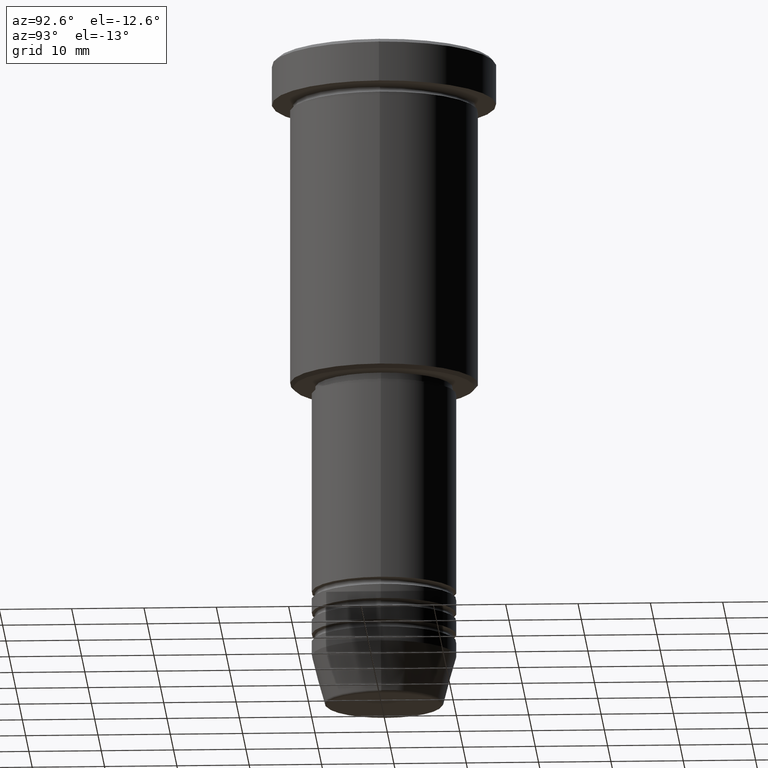
[diagram: clean part render]
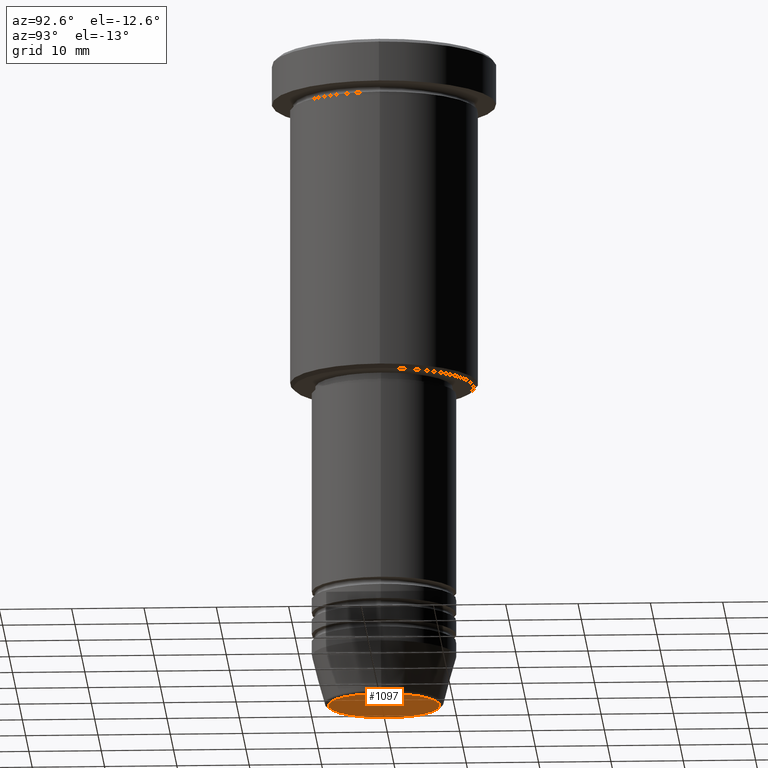
[diagram: same view with one face highlighted and labeled with its STEP entity id]
A machine part, auxiliary view. The second image highlights one B-rep face of the part: STEP entity #1097.
In plain terms, the highlighted planar face has unit normal (0, -0, 1).
Its self-contained STEP definition (entity closure, byte-faithful):
#34 = AXIS2_PLACEMENT_3D ( 'NONE', #1119, #1027, #929 ) ;
#106 = DIRECTION ( 'NONE',  ( 1.000000000000000000, 0.000000000000000000, 0.000000000000000000 ) ) ;
#282 = CARTESIAN_POINT ( 'NONE',  ( 0.000000000000000000, 0.000000000000000000, -91.00000000000000000 ) ) ;
#288 = DIRECTION ( 'NONE',  ( 1.000000000000000000, 0.000000000000000000, 0.000000000000000000 ) ) ;
#428 = ORIENTED_EDGE ( 'NONE', *, *, #1009, .T. ) ;
#438 = FACE_OUTER_BOUND ( 'NONE', #847, .T. ) ;
#464 = AXIS2_PLACEMENT_3D ( 'NONE', #282, #820, #106 ) ;
#495 = CARTESIAN_POINT ( 'NONE',  ( 0.000000000000000000, 0.000000000000000000, -91.00000000000000000 ) ) ;
#621 = ORIENTED_EDGE ( 'NONE', *, *, #1112, .T. ) ;
#673 = CARTESIAN_POINT ( 'NONE',  ( 7.740692158992654726, 0.000000000000000000, -91.00000000000000000 ) ) ;
#762 = CARTESIAN_POINT ( 'NONE',  ( -7.740692158992654726, 9.775343368540039135E-16, -91.00000000000000000 ) ) ;
#820 = DIRECTION ( 'NONE',  ( 0.000000000000000000, 0.000000000000000000, -1.000000000000000000 ) ) ;
#837 = DIRECTION ( 'NONE',  ( 0.000000000000000000, 0.000000000000000000, -1.000000000000000000 ) ) ;
#847 = EDGE_LOOP ( 'NONE', ( #428, #621 ) ) ;
#883 = CIRCLE ( 'NONE', #1036, 7.740692158992654726 ) ;
#929 = DIRECTION ( 'NONE',  ( 1.000000000000000000, 0.000000000000000000, 0.000000000000000000 ) ) ;
#952 = CIRCLE ( 'NONE', #464, 7.740692158992654726 ) ;
#981 = PLANE ( 'NONE',  #34 ) ;
#1009 = EDGE_CURVE ( 'NONE', #1073, #1136, #952, .T. ) ;
#1027 = DIRECTION ( 'NONE',  ( 0.000000000000000000, -0.000000000000000000, 1.000000000000000000 ) ) ;
#1036 = AXIS2_PLACEMENT_3D ( 'NONE', #495, #837, #288 ) ;
#1073 = VERTEX_POINT ( 'NONE', #673 ) ;
#1097 = ADVANCED_FACE ( 'NONE', ( #438 ), #981, .F. ) ;
#1112 = EDGE_CURVE ( 'NONE', #1136, #1073, #883, .T. ) ;
#1119 = CARTESIAN_POINT ( 'NONE',  ( 0.000000000000000000, 0.000000000000000000, -91.00000000000000000 ) ) ;
#1136 = VERTEX_POINT ( 'NONE', #762 ) ;